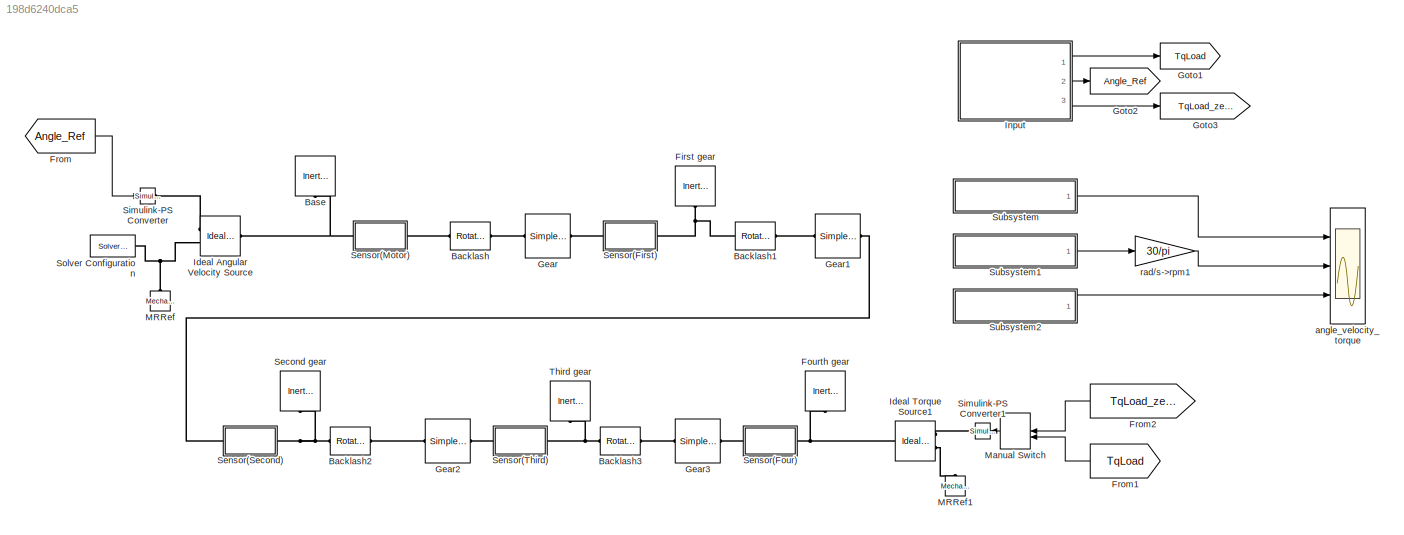
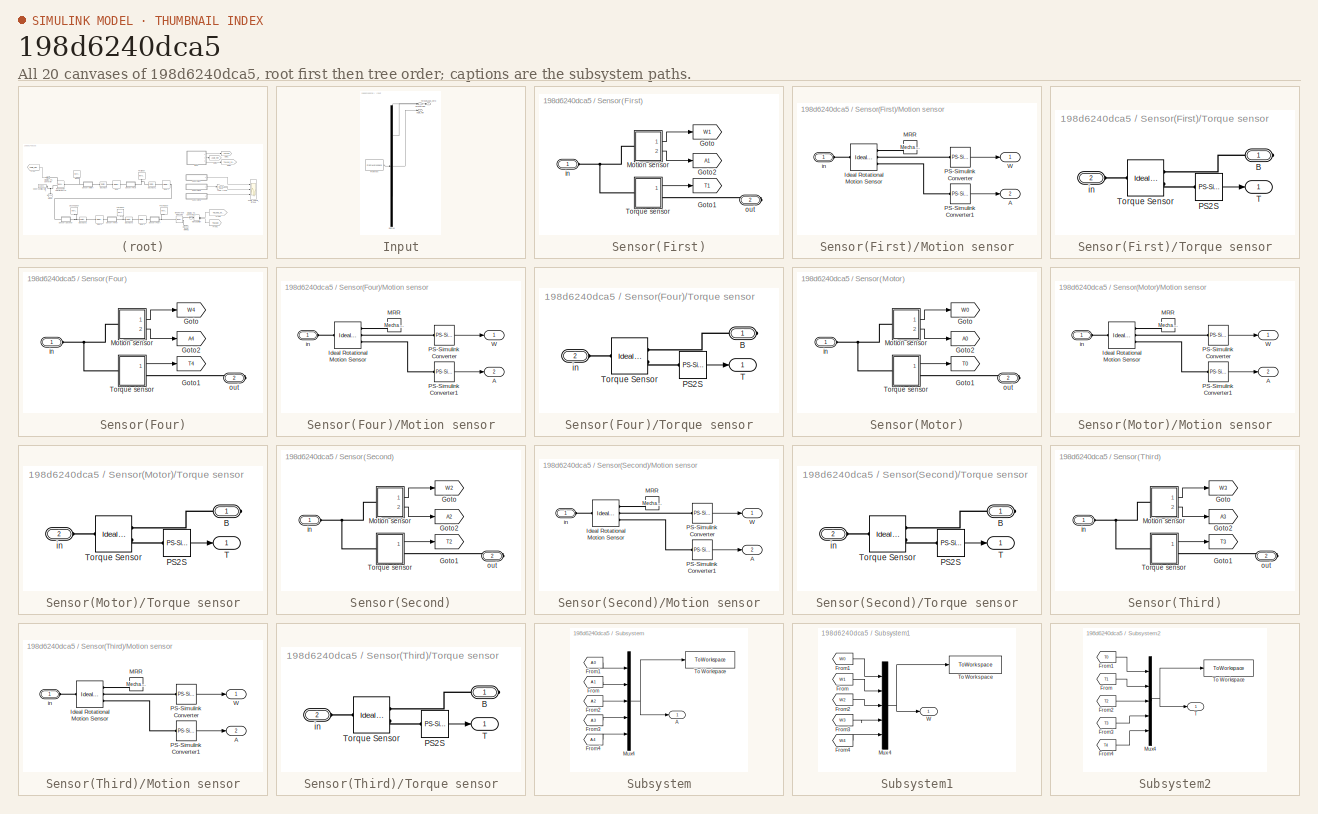
[diagram: thumbnail index - all 20 canvases of the model, root first then tree order]
MODEL slx_198d6240dca5
KIND model
CONFIG AbsTol = auto
CONFIG EnableMultiTasking = on
CONFIG FixedStep = auto
CONFIG InitFcn = Gear_parameters\n
CONFIG MaxStep = 0.001
CONFIG MinStep = auto
CONFIG RelTol = 1e-3
CONFIG SampleTimeConstraint = Unconstrained
CONFIG Solver = ode15s
CONFIG SolverName = ode15s
CONFIG StartTime = 0.0
CONFIG StopFcn = Gear_plot
CONFIG StopTime = 1
BLOCK [Reference] Backlash  REF=fl_lib/Mechanical/Rotational Elements/Rotational Hard Stop
  Ports = [0, 0, 0, 0, 0, 1, 1]
  SourceBlock = fl_lib/Mechanical/Rotational Elements/Rotational Hard Stop
  SourceProductBaseCode = SS
  SourceType = Rotational Hard Stop
BLOCK [Reference] Backlash1  REF=fl_lib/Mechanical/Rotational Elements/Rotational Hard Stop
  Ports = [0, 0, 0, 0, 0, 1, 1]
  SourceBlock = fl_lib/Mechanical/Rotational Elements/Rotational Hard Stop
  SourceProductBaseCode = SS
  SourceType = Rotational Hard Stop
BLOCK [Reference] Backlash2  REF=fl_lib/Mechanical/Rotational Elements/Rotational Hard Stop
  Ports = [0, 0, 0, 0, 0, 1, 1]
  SourceBlock = fl_lib/Mechanical/Rotational Elements/Rotational Hard Stop
  SourceProductBaseCode = SS
  SourceType = Rotational Hard Stop
BLOCK [Reference] Backlash3  REF=fl_lib/Mechanical/Rotational Elements/Rotational Hard Stop
  Ports = [0, 0, 0, 0, 0, 1, 1]
  SourceBlock = fl_lib/Mechanical/Rotational Elements/Rotational Hard Stop
  SourceProductBaseCode = SS
  SourceType = Rotational Hard Stop
BLOCK [Reference] Base  REF=fl_lib/Mechanical/Rotational Elements/Inertia
  NameLocation = right
  Ports = [0, 0, 0, 0, 0, 1]
  SourceBlock = fl_lib/Mechanical/Rotational Elements/Inertia
  SourceProductBaseCode = SS
  SourceType = Inertia
BLOCK [Reference] First gear  REF=fl_lib/Mechanical/Rotational Elements/Inertia
  NameLocation = right
  Ports = [0, 0, 0, 0, 0, 1]
  SourceBlock = fl_lib/Mechanical/Rotational Elements/Inertia
  SourceProductBaseCode = SS
  SourceType = Inertia
BLOCK [Reference] Fourth gear  REF=fl_lib/Mechanical/Rotational Elements/Inertia
  NameLocation = right
  Ports = [0, 0, 0, 0, 0, 1]
  SourceBlock = fl_lib/Mechanical/Rotational Elements/Inertia
  SourceProductBaseCode = SS
  SourceType = Inertia
BLOCK [From] From
  GotoTag = Angle_Ref
BLOCK [From] From1
  GotoTag = TqLoad
  NameLocation = top
BLOCK [From] From2
  GotoTag = TqLoad_zero
  NameLocation = top
BLOCK [Reference] Gear  REF=sdl_lib/Gears/Simple Gear
  Ports = [0, 0, 0, 0, 0, 1, 1]
  SourceBlock = sdl_lib/Gears/Simple Gear
  SourceProductBaseCode = LD
  SourceType = Simple Gear
BLOCK [Reference] Gear1  REF=sdl_lib/Gears/Simple Gear
  Ports = [0, 0, 0, 0, 0, 1, 1]
  SourceBlock = sdl_lib/Gears/Simple Gear
  SourceProductBaseCode = LD
  SourceType = Simple Gear
BLOCK [Reference] Gear2  REF=sdl_lib/Gears/Simple Gear
  Ports = [0, 0, 0, 0, 0, 1, 1]
  SourceBlock = sdl_lib/Gears/Simple Gear
  SourceProductBaseCode = LD
  SourceType = Simple Gear
BLOCK [Reference] Gear3  REF=sdl_lib/Gears/Simple Gear
  Ports = [0, 0, 0, 0, 0, 1, 1]
  SourceBlock = sdl_lib/Gears/Simple Gear
  SourceProductBaseCode = LD
  SourceType = Simple Gear
BLOCK [Goto] Goto1
  GotoTag = TqLoad
BLOCK [Goto] Goto2
  GotoTag = Angle_Ref
BLOCK [Goto] Goto3
  GotoTag = TqLoad_zero
BLOCK [Reference] Ideal Angular Velocity Source  REF=fl_lib/Mechanical/Mechanical Sources/Ideal Angular
Velocity Source
  Ports = [0, 0, 0, 0, 0, 1, 2]
  SourceBlock = fl_lib/Mechanical/Mechanical Sources/Ideal Angular\nVelocity Source
  SourceProductBaseCode = SS
  SourceType = Ideal Angular\nVelocity Source
BLOCK [Reference] Ideal Torque Source1  REF=fl_lib/Mechanical/Mechanical Sources/Ideal Torque Source
  Ports = [0, 0, 0, 0, 0, 1, 2]
  SourceBlock = fl_lib/Mechanical/Mechanical Sources/Ideal Torque Source
  SourceProductBaseCode = SS
  SourceType = Ideal Torque Source
BLOCK [SubSystem] Input
  ClipboardFcn = sigbuilder_block('clipboard');
  CloseFcn = sigbuilder_block('close');
  ContinueFcn = sigbuilder_block('continue');
  CopyFcn = sigbuilder_block('copy');
  DeleteFcn = sigbuilder_block('delete');
  LoadFcn = sigbuilder_block('load');
  MaskHideContents = on
  ModelCloseFcn = sigbuilder_block('modelClose');
  NameChangeFcn = sigbuilder_block('namechange');
  OpenFcn = sigbuilder_block('open',[661.5 288 949.5 474.75 ]);
  PauseFcn = sigbuilder_block('pause');
  Ports = [0, 3]
  PreSaveFcn = sigbuilder_block('preSave');
  RequestExecContextInheritance = off
  StartFcn = sigbuilder_block('start');
  StopFcn = sigbuilder_block('stop');
  Tag = STV Subsys
BLOCK [Outport] Input/Angle_Ref
  Port = 2
  Tag = STV Outport
  VectorParamsAs1DForOutWhenUnconnected = off
BLOCK [Demux] Input/Demux
  DisplayOption = none
  Outputs = 3
  Ports = [1, 3]
  Tag = STV Demux
BLOCK [FromWorkspace] Input/FromWs
  Tag = STV FromWs
  VariableName = tuvar
BLOCK [Outport] Input/TorqueLoad
  Tag = STV Outport
  VectorParamsAs1DForOutWhenUnconnected = off
BLOCK [Outport] Input/TorqueLoad_zero
  Port = 3
  Tag = STV Outport
BLOCK [Reference] MRRef  REF=fl_lib/Mechanical/Rotational Elements/Mechanical
Rotational Reference
  NameLocation = right
  Ports = [0, 0, 0, 0, 0, 1]
  SourceBlock = fl_lib/Mechanical/Rotational Elements/Mechanical\nRotational Reference
  SourceProductBaseCode = SS
  SourceType = Mechanical\nRotational Reference
BLOCK [Reference] MRRef1  REF=fl_lib/Mechanical/Rotational Elements/Mechanical
Rotational Reference
  NameLocation = right
  Ports = [0, 0, 0, 0, 0, 1]
  SourceBlock = fl_lib/Mechanical/Rotational Elements/Mechanical\nRotational Reference
  SourceProductBaseCode = SS
  SourceType = Mechanical\nRotational Reference
BLOCK [ManualSwitch] Manual Switch
  NameLocation = top
BLOCK [Reference] Second gear  REF=fl_lib/Mechanical/Rotational Elements/Inertia
  NameLocation = right
  Ports = [0, 0, 0, 0, 0, 1]
  SourceBlock = fl_lib/Mechanical/Rotational Elements/Inertia
  SourceProductBaseCode = SS
  SourceType = Inertia
BLOCK [SubSystem] Sensor(First)
  Ports = [0, 0, 0, 0, 0, 1, 1]
  RequestExecContextInheritance = off
BLOCK [Goto] Sensor(First)/Goto
  GotoTag = W1
  TagVisibility = global
BLOCK [Goto] Sensor(First)/Goto1
  GotoTag = T1
  TagVisibility = global
BLOCK [Goto] Sensor(First)/Goto2
  GotoTag = A1
  TagVisibility = global
BLOCK [SubSystem] Sensor(First)/Motion sensor
  Ports = [0, 2, 0, 0, 0, 1]
  RequestExecContextInheritance = off
BLOCK [Outport] Sensor(First)/Motion sensor/A
  Port = 2
  VectorParamsAs1DForOutWhenUnconnected = off
BLOCK [Reference] Sensor(First)/Motion sensor/Ideal Rotational Motion Sensor  REF=fl_lib/Mechanical/Mechanical Sensors/Ideal Rotational
Motion Sensor
  Ports = [0, 0, 0, 0, 0, 1, 3]
  SourceBlock = fl_lib/Mechanical/Mechanical Sensors/Ideal Rotational\nMotion Sensor
  SourceProductBaseCode = SS
  SourceType = Ideal Rotational\nMotion Sensor
BLOCK [Reference] Sensor(First)/Motion sensor/MRR  REF=fl_lib/Mechanical/Rotational Elements/Mechanical
Rotational Reference
  NameLocation = top
  Ports = [0, 0, 0, 0, 0, 1]
  SourceBlock = fl_lib/Mechanical/Rotational Elements/Mechanical\nRotational Reference
  SourceProductBaseCode = SS
  SourceType = Mechanical\nRotational Reference
BLOCK [Reference] Sensor(First)/Motion sensor/PS-Simulink Converter  REF=nesl_utility/PS-Simulink
Converter
  Ports = [0, 1, 0, 0, 0, 1]
  SourceBlock = nesl_utility/PS-Simulink\nConverter
  SourceProductBaseCode = SS
  SourceType = PS-Simulink\nConverter
BLOCK [Reference] Sensor(First)/Motion sensor/PS-Simulink Converter1  REF=nesl_utility/PS-Simulink
Converter
  Ports = [0, 1, 0, 0, 0, 1]
  SourceBlock = nesl_utility/PS-Simulink\nConverter
  SourceProductBaseCode = SS
  SourceType = PS-Simulink\nConverter
BLOCK [Outport] Sensor(First)/Motion sensor/W
  VectorParamsAs1DForOutWhenUnconnected = off
BLOCK [PMIOPort] Sensor(First)/Motion sensor/in
  Side = Left
BLOCK [SubSystem] Sensor(First)/Torque sensor
  Ports = [0, 1, 0, 0, 0, 1, 1]
  RequestExecContextInheritance = off
BLOCK [PMIOPort] Sensor(First)/Torque sensor/B
  Side = Right
BLOCK [Reference] Sensor(First)/Torque sensor/PS2S  REF=nesl_utility/PS-Simulink
Converter
  Ports = [0, 1, 0, 0, 0, 1]
  SourceBlock = nesl_utility/PS-Simulink\nConverter
  SourceProductBaseCode = SS
  SourceType = PS-Simulink\nConverter
BLOCK [Outport] Sensor(First)/Torque sensor/T
  VectorParamsAs1DForOutWhenUnconnected = off
BLOCK [Reference] Sensor(First)/Torque sensor/Torque Sensor  REF=fl_lib/Mechanical/Mechanical Sensors/Ideal Torque Sensor
  Ports = [0, 0, 0, 0, 0, 1, 2]
  SourceBlock = fl_lib/Mechanical/Mechanical Sensors/Ideal Torque Sensor
  SourceProductBaseCode = SS
  SourceType = Ideal Torque Sensor
BLOCK [PMIOPort] Sensor(First)/Torque sensor/in
  Port = 2
  Side = Left
BLOCK [PMIOPort] Sensor(First)/in
  Side = Left
BLOCK [PMIOPort] Sensor(First)/out
  Port = 2
  Side = Right
BLOCK [SubSystem] Sensor(Four)
  Ports = [0, 0, 0, 0, 0, 1, 1]
  RequestExecContextInheritance = off
BLOCK [Goto] Sensor(Four)/Goto
  GotoTag = W4
  TagVisibility = global
BLOCK [Goto] Sensor(Four)/Goto1
  GotoTag = T4
  TagVisibility = global
BLOCK [Goto] Sensor(Four)/Goto2
  GotoTag = A4
  TagVisibility = global
BLOCK [SubSystem] Sensor(Four)/Motion sensor
  Ports = [0, 2, 0, 0, 0, 1]
  RequestExecContextInheritance = off
BLOCK [Outport] Sensor(Four)/Motion sensor/A
  Port = 2
  VectorParamsAs1DForOutWhenUnconnected = off
BLOCK [Reference] Sensor(Four)/Motion sensor/Ideal Rotational Motion Sensor  REF=fl_lib/Mechanical/Mechanical Sensors/Ideal Rotational
Motion Sensor
  Ports = [0, 0, 0, 0, 0, 1, 3]
  SourceBlock = fl_lib/Mechanical/Mechanical Sensors/Ideal Rotational\nMotion Sensor
  SourceProductBaseCode = SS
  SourceType = Ideal Rotational\nMotion Sensor
BLOCK [Reference] Sensor(Four)/Motion sensor/MRR  REF=fl_lib/Mechanical/Rotational Elements/Mechanical
Rotational Reference
  NameLocation = top
  Ports = [0, 0, 0, 0, 0, 1]
  SourceBlock = fl_lib/Mechanical/Rotational Elements/Mechanical\nRotational Reference
  SourceProductBaseCode = SS
  SourceType = Mechanical\nRotational Reference
BLOCK [Reference] Sensor(Four)/Motion sensor/PS-Simulink Converter  REF=nesl_utility/PS-Simulink
Converter
  Ports = [0, 1, 0, 0, 0, 1]
  SourceBlock = nesl_utility/PS-Simulink\nConverter
  SourceProductBaseCode = SS
  SourceType = PS-Simulink\nConverter
BLOCK [Reference] Sensor(Four)/Motion sensor/PS-Simulink Converter1  REF=nesl_utility/PS-Simulink
Converter
  Ports = [0, 1, 0, 0, 0, 1]
  SourceBlock = nesl_utility/PS-Simulink\nConverter
  SourceProductBaseCode = SS
  SourceType = PS-Simulink\nConverter
BLOCK [Outport] Sensor(Four)/Motion sensor/W
  VectorParamsAs1DForOutWhenUnconnected = off
BLOCK [PMIOPort] Sensor(Four)/Motion sensor/in
  Side = Left
BLOCK [SubSystem] Sensor(Four)/Torque sensor
  Ports = [0, 1, 0, 0, 0, 1, 1]
  RequestExecContextInheritance = off
BLOCK [PMIOPort] Sensor(Four)/Torque sensor/B
  Side = Right
BLOCK [Reference] Sensor(Four)/Torque sensor/PS2S  REF=nesl_utility/PS-Simulink
Converter
  Ports = [0, 1, 0, 0, 0, 1]
  SourceBlock = nesl_utility/PS-Simulink\nConverter
  SourceProductBaseCode = SS
  SourceType = PS-Simulink\nConverter
BLOCK [Outport] Sensor(Four)/Torque sensor/T
  VectorParamsAs1DForOutWhenUnconnected = off
BLOCK [Reference] Sensor(Four)/Torque sensor/Torque Sensor  REF=fl_lib/Mechanical/Mechanical Sensors/Ideal Torque Sensor
  Ports = [0, 0, 0, 0, 0, 1, 2]
  SourceBlock = fl_lib/Mechanical/Mechanical Sensors/Ideal Torque Sensor
  SourceProductBaseCode = SS
  SourceType = Ideal Torque Sensor
BLOCK [PMIOPort] Sensor(Four)/Torque sensor/in
  Port = 2
  Side = Left
BLOCK [PMIOPort] Sensor(Four)/in
  Side = Left
BLOCK [PMIOPort] Sensor(Four)/out
  Port = 2
  Side = Right
BLOCK [SubSystem] Sensor(Motor)
  Ports = [0, 0, 0, 0, 0, 1, 1]
  RequestExecContextInheritance = off
BLOCK [Goto] Sensor(Motor)/Goto
  GotoTag = W0
  TagVisibility = global
BLOCK [Goto] Sensor(Motor)/Goto1
  GotoTag = T0
  TagVisibility = global
BLOCK [Goto] Sensor(Motor)/Goto2
  GotoTag = A0
  TagVisibility = global
BLOCK [SubSystem] Sensor(Motor)/Motion sensor
  Ports = [0, 2, 0, 0, 0, 1]
  RequestExecContextInheritance = off
BLOCK [Outport] Sensor(Motor)/Motion sensor/A
  Port = 2
  VectorParamsAs1DForOutWhenUnconnected = off
BLOCK [Reference] Sensor(Motor)/Motion sensor/Ideal Rotational Motion Sensor  REF=fl_lib/Mechanical/Mechanical Sensors/Ideal Rotational
Motion Sensor
  Ports = [0, 0, 0, 0, 0, 1, 3]
  SourceBlock = fl_lib/Mechanical/Mechanical Sensors/Ideal Rotational\nMotion Sensor
  SourceProductBaseCode = SS
  SourceType = Ideal Rotational\nMotion Sensor
BLOCK [Reference] Sensor(Motor)/Motion sensor/MRR  REF=fl_lib/Mechanical/Rotational Elements/Mechanical
Rotational Reference
  NameLocation = top
  Ports = [0, 0, 0, 0, 0, 1]
  SourceBlock = fl_lib/Mechanical/Rotational Elements/Mechanical\nRotational Reference
  SourceProductBaseCode = SS
  SourceType = Mechanical\nRotational Reference
BLOCK [Reference] Sensor(Motor)/Motion sensor/PS-Simulink Converter  REF=nesl_utility/PS-Simulink
Converter
  Ports = [0, 1, 0, 0, 0, 1]
  SourceBlock = nesl_utility/PS-Simulink\nConverter
  SourceProductBaseCode = SS
  SourceType = PS-Simulink\nConverter
BLOCK [Reference] Sensor(Motor)/Motion sensor/PS-Simulink Converter1  REF=nesl_utility/PS-Simulink
Converter
  Ports = [0, 1, 0, 0, 0, 1]
  SourceBlock = nesl_utility/PS-Simulink\nConverter
  SourceProductBaseCode = SS
  SourceType = PS-Simulink\nConverter
BLOCK [Outport] Sensor(Motor)/Motion sensor/W
  VectorParamsAs1DForOutWhenUnconnected = off
BLOCK [PMIOPort] Sensor(Motor)/Motion sensor/in
  Side = Left
BLOCK [SubSystem] Sensor(Motor)/Torque sensor
  Ports = [0, 1, 0, 0, 0, 1, 1]
  RequestExecContextInheritance = off
BLOCK [PMIOPort] Sensor(Motor)/Torque sensor/B
  Side = Right
BLOCK [Reference] Sensor(Motor)/Torque sensor/PS2S  REF=nesl_utility/PS-Simulink
Converter
  Ports = [0, 1, 0, 0, 0, 1]
  SourceBlock = nesl_utility/PS-Simulink\nConverter
  SourceProductBaseCode = SS
  SourceType = PS-Simulink\nConverter
BLOCK [Outport] Sensor(Motor)/Torque sensor/T
  VectorParamsAs1DForOutWhenUnconnected = off
BLOCK [Reference] Sensor(Motor)/Torque sensor/Torque Sensor  REF=fl_lib/Mechanical/Mechanical Sensors/Ideal Torque Sensor
  Ports = [0, 0, 0, 0, 0, 1, 2]
  SourceBlock = fl_lib/Mechanical/Mechanical Sensors/Ideal Torque Sensor
  SourceProductBaseCode = SS
  SourceType = Ideal Torque Sensor
BLOCK [PMIOPort] Sensor(Motor)/Torque sensor/in
  Port = 2
  Side = Left
BLOCK [PMIOPort] Sensor(Motor)/in
  Side = Left
BLOCK [PMIOPort] Sensor(Motor)/out
  Port = 2
  Side = Right
BLOCK [SubSystem] Sensor(Second)
  Ports = [0, 0, 0, 0, 0, 1, 1]
  RequestExecContextInheritance = off
BLOCK [Goto] Sensor(Second)/Goto
  GotoTag = W2
  TagVisibility = global
BLOCK [Goto] Sensor(Second)/Goto1
  GotoTag = T2
  TagVisibility = global
BLOCK [Goto] Sensor(Second)/Goto2
  GotoTag = A2
  TagVisibility = global
BLOCK [SubSystem] Sensor(Second)/Motion sensor
  Ports = [0, 2, 0, 0, 0, 1]
  RequestExecContextInheritance = off
BLOCK [Outport] Sensor(Second)/Motion sensor/A
  Port = 2
  VectorParamsAs1DForOutWhenUnconnected = off
BLOCK [Reference] Sensor(Second)/Motion sensor/Ideal Rotational Motion Sensor  REF=fl_lib/Mechanical/Mechanical Sensors/Ideal Rotational
Motion Sensor
  Ports = [0, 0, 0, 0, 0, 1, 3]
  SourceBlock = fl_lib/Mechanical/Mechanical Sensors/Ideal Rotational\nMotion Sensor
  SourceProductBaseCode = SS
  SourceType = Ideal Rotational\nMotion Sensor
BLOCK [Reference] Sensor(Second)/Motion sensor/MRR  REF=fl_lib/Mechanical/Rotational Elements/Mechanical
Rotational Reference
  NameLocation = top
  Ports = [0, 0, 0, 0, 0, 1]
  SourceBlock = fl_lib/Mechanical/Rotational Elements/Mechanical\nRotational Reference
  SourceProductBaseCode = SS
  SourceType = Mechanical\nRotational Reference
BLOCK [Reference] Sensor(Second)/Motion sensor/PS-Simulink Converter  REF=nesl_utility/PS-Simulink
Converter
  Ports = [0, 1, 0, 0, 0, 1]
  SourceBlock = nesl_utility/PS-Simulink\nConverter
  SourceProductBaseCode = SS
  SourceType = PS-Simulink\nConverter
BLOCK [Reference] Sensor(Second)/Motion sensor/PS-Simulink Converter1  REF=nesl_utility/PS-Simulink
Converter
  Ports = [0, 1, 0, 0, 0, 1]
  SourceBlock = nesl_utility/PS-Simulink\nConverter
  SourceProductBaseCode = SS
  SourceType = PS-Simulink\nConverter
BLOCK [Outport] Sensor(Second)/Motion sensor/W
  VectorParamsAs1DForOutWhenUnconnected = off
BLOCK [PMIOPort] Sensor(Second)/Motion sensor/in
  Side = Left
BLOCK [SubSystem] Sensor(Second)/Torque sensor
  Ports = [0, 1, 0, 0, 0, 1, 1]
  RequestExecContextInheritance = off
BLOCK [PMIOPort] Sensor(Second)/Torque sensor/B
  Side = Right
BLOCK [Reference] Sensor(Second)/Torque sensor/PS2S  REF=nesl_utility/PS-Simulink
Converter
  Ports = [0, 1, 0, 0, 0, 1]
  SourceBlock = nesl_utility/PS-Simulink\nConverter
  SourceProductBaseCode = SS
  SourceType = PS-Simulink\nConverter
BLOCK [Outport] Sensor(Second)/Torque sensor/T
  VectorParamsAs1DForOutWhenUnconnected = off
BLOCK [Reference] Sensor(Second)/Torque sensor/Torque Sensor  REF=fl_lib/Mechanical/Mechanical Sensors/Ideal Torque Sensor
  Ports = [0, 0, 0, 0, 0, 1, 2]
  SourceBlock = fl_lib/Mechanical/Mechanical Sensors/Ideal Torque Sensor
  SourceProductBaseCode = SS
  SourceType = Ideal Torque Sensor
BLOCK [PMIOPort] Sensor(Second)/Torque sensor/in
  Port = 2
  Side = Left
BLOCK [PMIOPort] Sensor(Second)/in
  Side = Left
BLOCK [PMIOPort] Sensor(Second)/out
  Port = 2
  Side = Right
BLOCK [SubSystem] Sensor(Third)
  Ports = [0, 0, 0, 0, 0, 1, 1]
  RequestExecContextInheritance = off
BLOCK [Goto] Sensor(Third)/Goto
  GotoTag = W3
  TagVisibility = global
BLOCK [Goto] Sensor(Third)/Goto1
  GotoTag = T3
  TagVisibility = global
BLOCK [Goto] Sensor(Third)/Goto2
  GotoTag = A3
  TagVisibility = global
BLOCK [SubSystem] Sensor(Third)/Motion sensor
  Ports = [0, 2, 0, 0, 0, 1]
  RequestExecContextInheritance = off
BLOCK [Outport] Sensor(Third)/Motion sensor/A
  Port = 2
  VectorParamsAs1DForOutWhenUnconnected = off
BLOCK [Reference] Sensor(Third)/Motion sensor/Ideal Rotational Motion Sensor  REF=fl_lib/Mechanical/Mechanical Sensors/Ideal Rotational
Motion Sensor
  Ports = [0, 0, 0, 0, 0, 1, 3]
  SourceBlock = fl_lib/Mechanical/Mechanical Sensors/Ideal Rotational\nMotion Sensor
  SourceProductBaseCode = SS
  SourceType = Ideal Rotational\nMotion Sensor
BLOCK [Reference] Sensor(Third)/Motion sensor/MRR  REF=fl_lib/Mechanical/Rotational Elements/Mechanical
Rotational Reference
  NameLocation = top
  Ports = [0, 0, 0, 0, 0, 1]
  SourceBlock = fl_lib/Mechanical/Rotational Elements/Mechanical\nRotational Reference
  SourceProductBaseCode = SS
  SourceType = Mechanical\nRotational Reference
BLOCK [Reference] Sensor(Third)/Motion sensor/PS-Simulink Converter  REF=nesl_utility/PS-Simulink
Converter
  Ports = [0, 1, 0, 0, 0, 1]
  SourceBlock = nesl_utility/PS-Simulink\nConverter
  SourceProductBaseCode = SS
  SourceType = PS-Simulink\nConverter
BLOCK [Reference] Sensor(Third)/Motion sensor/PS-Simulink Converter1  REF=nesl_utility/PS-Simulink
Converter
  Ports = [0, 1, 0, 0, 0, 1]
  SourceBlock = nesl_utility/PS-Simulink\nConverter
  SourceProductBaseCode = SS
  SourceType = PS-Simulink\nConverter
BLOCK [Outport] Sensor(Third)/Motion sensor/W
  VectorParamsAs1DForOutWhenUnconnected = off
BLOCK [PMIOPort] Sensor(Third)/Motion sensor/in
  Side = Left
BLOCK [SubSystem] Sensor(Third)/Torque sensor
  Ports = [0, 1, 0, 0, 0, 1, 1]
  RequestExecContextInheritance = off
BLOCK [PMIOPort] Sensor(Third)/Torque sensor/B
  Side = Right
BLOCK [Reference] Sensor(Third)/Torque sensor/PS2S  REF=nesl_utility/PS-Simulink
Converter
  Ports = [0, 1, 0, 0, 0, 1]
  SourceBlock = nesl_utility/PS-Simulink\nConverter
  SourceProductBaseCode = SS
  SourceType = PS-Simulink\nConverter
BLOCK [Outport] Sensor(Third)/Torque sensor/T
  VectorParamsAs1DForOutWhenUnconnected = off
BLOCK [Reference] Sensor(Third)/Torque sensor/Torque Sensor  REF=fl_lib/Mechanical/Mechanical Sensors/Ideal Torque Sensor
  Ports = [0, 0, 0, 0, 0, 1, 2]
  SourceBlock = fl_lib/Mechanical/Mechanical Sensors/Ideal Torque Sensor
  SourceProductBaseCode = SS
  SourceType = Ideal Torque Sensor
BLOCK [PMIOPort] Sensor(Third)/Torque sensor/in
  Port = 2
  Side = Left
BLOCK [PMIOPort] Sensor(Third)/in
  Side = Left
BLOCK [PMIOPort] Sensor(Third)/out
  Port = 2
  Side = Right
BLOCK [Reference] Simulink-PS Converter  REF=nesl_utility/Simulink-PS
Converter
  Ports = [1, 0, 0, 0, 0, 0, 1]
  SourceBlock = nesl_utility/Simulink-PS\nConverter
  SourceProductBaseCode = SS
  SourceType = Simulink-PS\nConverter
BLOCK [Reference] Simulink-PS Converter1  REF=nesl_utility/Simulink-PS
Converter
  Ports = [1, 0, 0, 0, 0, 0, 1]
  SourceBlock = nesl_utility/Simulink-PS\nConverter
  SourceProductBaseCode = SS
  SourceType = Simulink-PS\nConverter
BLOCK [Reference] Solver Configuration  REF=nesl_utility/Solver
Configuration
  Ports = [0, 0, 0, 0, 0, 0, 1]
  SourceBlock = nesl_utility/Solver\nConfiguration
  SourceProductBaseCode = SS
  SourceType = Solver\nConfiguration
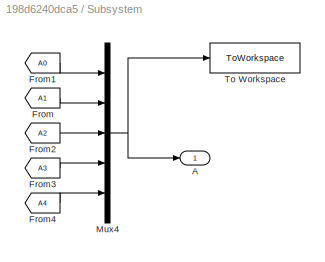
BLOCK [SubSystem] Subsystem
  Ports = [0, 1]
  RequestExecContextInheritance = off
BLOCK [Outport] Subsystem/A
BLOCK [From] Subsystem/From
  GotoTag = A1
  TagVisibility = global
BLOCK [From] Subsystem/From1
  GotoTag = A0
  TagVisibility = global
BLOCK [From] Subsystem/From2
  GotoTag = A2
  TagVisibility = global
BLOCK [From] Subsystem/From3
  GotoTag = A3
  TagVisibility = global
BLOCK [From] Subsystem/From4
  GotoTag = A4
  TagVisibility = global
BLOCK [Mux] Subsystem/Mux4
  DisplayOption = bar
  Inputs = 5
  Ports = [5, 1]
BLOCK [ToWorkspace] Subsystem/To Workspace
  FixptAsFi = on
  MaxDataPoints = inf
  Ports = [1]
  SampleTime = -1
  SaveFormat = Timeseries
  VariableName = A
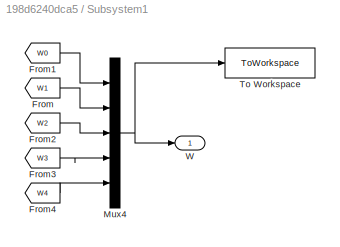
BLOCK [SubSystem] Subsystem1
  Ports = [0, 1]
  RequestExecContextInheritance = off
BLOCK [From] Subsystem1/From
  GotoTag = W1
  TagVisibility = global
BLOCK [From] Subsystem1/From1
  GotoTag = W0
  TagVisibility = global
BLOCK [From] Subsystem1/From2
  GotoTag = W2
  TagVisibility = global
BLOCK [From] Subsystem1/From3
  GotoTag = W3
  TagVisibility = global
BLOCK [From] Subsystem1/From4
  GotoTag = W4
  TagVisibility = global
BLOCK [Mux] Subsystem1/Mux4
  DisplayOption = bar
  Inputs = 5
  Ports = [5, 1]
BLOCK [ToWorkspace] Subsystem1/To Workspace
  FixptAsFi = on
  MaxDataPoints = inf
  Ports = [1]
  SampleTime = -1
  SaveFormat = Timeseries
  VariableName = W
BLOCK [Outport] Subsystem1/W
BLOCK [SubSystem] Subsystem2
  Ports = [0, 1]
  RequestExecContextInheritance = off
BLOCK [From] Subsystem2/From
  GotoTag = T1
  TagVisibility = global
BLOCK [From] Subsystem2/From1
  GotoTag = T0
  TagVisibility = global
BLOCK [From] Subsystem2/From2
  GotoTag = T2
  TagVisibility = global
BLOCK [From] Subsystem2/From3
  GotoTag = T3
  TagVisibility = global
BLOCK [From] Subsystem2/From4
  GotoTag = T4
  TagVisibility = global
BLOCK [Mux] Subsystem2/Mux4
  DisplayOption = bar
  Inputs = 5
  Ports = [5, 1]
BLOCK [Outport] Subsystem2/T
BLOCK [ToWorkspace] Subsystem2/To Workspace
  FixptAsFi = on
  MaxDataPoints = inf
  Ports = [1]
  SampleTime = -1
  SaveFormat = Timeseries
  VariableName = T
BLOCK [Reference] Third gear  REF=fl_lib/Mechanical/Rotational Elements/Inertia
  NameLocation = right
  Ports = [0, 0, 0, 0, 0, 1]
  SourceBlock = fl_lib/Mechanical/Rotational Elements/Inertia
  SourceProductBaseCode = SS
  SourceType = Inertia
BLOCK [Scope] angle_velocity_torque
  Description = angle,velocity,torque
  Floating = off
  NumInputPorts = 3
  Ports = [3]
  ScopeSpecificationString = Simulink.scopes.TimeScopeBlockCfg('CurrentConfiguration', extmgr.ConfigurationSet(extmgr.Configuration('Core','General UI',true),extmgr.Configuration('Core','Source UI',true),extmgr.Configuration('Sources','WiredSimulink',true,'DataLoggingSaveFormat','StructureWithTime','DataLoggingMaxPoints','15000','DataLoggingDecimation','1','DataLoggingDecimateData',true),extmgr.Configuration('Visuals','Time D...<+4073ch>
  Tag = angle,velocity,torque
BLOCK [Gain] rad//s->rpm1
  Gain = 30/pi
LINE From1:1 -> Manual Switch:2
LINE From2:1 -> Manual Switch:1
LINE From:1 -> Simulink-PS Converter:1
LINE Input:1 -> Goto1:1
LINE Input:2 -> Goto2:1
LINE Input:3 -> Goto3:1
LINE Manual Switch:1 -> Simulink-PS Converter1:1
LINE Sensor(First)/Motion sensor/PS-Simulink Converter1:1 -> Sensor(First)/Motion sensor/A:1
LINE Sensor(First)/Motion sensor/PS-Simulink Converter:1 -> Sensor(First)/Motion sensor/W:1
LINE Sensor(First)/Motion sensor:1 -> Sensor(First)/Goto:1
LINE Sensor(First)/Motion sensor:2 -> Sensor(First)/Goto2:1
LINE Sensor(First)/Torque sensor/PS2S:1 -> Sensor(First)/Torque sensor/T:1
LINE Sensor(First)/Torque sensor:1 -> Sensor(First)/Goto1:1
LINE Sensor(Four)/Motion sensor/PS-Simulink Converter1:1 -> Sensor(Four)/Motion sensor/A:1
LINE Sensor(Four)/Motion sensor/PS-Simulink Converter:1 -> Sensor(Four)/Motion sensor/W:1
LINE Sensor(Four)/Motion sensor:1 -> Sensor(Four)/Goto:1
LINE Sensor(Four)/Motion sensor:2 -> Sensor(Four)/Goto2:1
LINE Sensor(Four)/Torque sensor/PS2S:1 -> Sensor(Four)/Torque sensor/T:1
LINE Sensor(Four)/Torque sensor:1 -> Sensor(Four)/Goto1:1
LINE Sensor(Motor)/Motion sensor/PS-Simulink Converter1:1 -> Sensor(Motor)/Motion sensor/A:1
LINE Sensor(Motor)/Motion sensor/PS-Simulink Converter:1 -> Sensor(Motor)/Motion sensor/W:1
LINE Sensor(Motor)/Motion sensor:1 -> Sensor(Motor)/Goto:1
LINE Sensor(Motor)/Motion sensor:2 -> Sensor(Motor)/Goto2:1
LINE Sensor(Motor)/Torque sensor/PS2S:1 -> Sensor(Motor)/Torque sensor/T:1
LINE Sensor(Motor)/Torque sensor:1 -> Sensor(Motor)/Goto1:1
LINE Sensor(Second)/Motion sensor/PS-Simulink Converter1:1 -> Sensor(Second)/Motion sensor/A:1
LINE Sensor(Second)/Motion sensor/PS-Simulink Converter:1 -> Sensor(Second)/Motion sensor/W:1
LINE Sensor(Second)/Motion sensor:1 -> Sensor(Second)/Goto:1
LINE Sensor(Second)/Motion sensor:2 -> Sensor(Second)/Goto2:1
LINE Sensor(Second)/Torque sensor/PS2S:1 -> Sensor(Second)/Torque sensor/T:1
LINE Sensor(Second)/Torque sensor:1 -> Sensor(Second)/Goto1:1
LINE Sensor(Third)/Motion sensor/PS-Simulink Converter1:1 -> Sensor(Third)/Motion sensor/A:1
LINE Sensor(Third)/Motion sensor/PS-Simulink Converter:1 -> Sensor(Third)/Motion sensor/W:1
LINE Sensor(Third)/Motion sensor:1 -> Sensor(Third)/Goto:1
LINE Sensor(Third)/Motion sensor:2 -> Sensor(Third)/Goto2:1
LINE Sensor(Third)/Torque sensor/PS2S:1 -> Sensor(Third)/Torque sensor/T:1
LINE Sensor(Third)/Torque sensor:1 -> Sensor(Third)/Goto1:1
LINE Subsystem/From1:1 -> Subsystem/Mux4:1
LINE Subsystem/From2:1 -> Subsystem/Mux4:3
LINE Subsystem/From3:1 -> Subsystem/Mux4:4
LINE Subsystem/From4:1 -> Subsystem/Mux4:5
LINE Subsystem/From:1 -> Subsystem/Mux4:2
NET Subsystem/Mux4:1 -> Subsystem/A:1, Subsystem/To Workspace:1
LINE Subsystem1/From1:1 -> Subsystem1/Mux4:1
LINE Subsystem1/From2:1 -> Subsystem1/Mux4:3
LINE Subsystem1/From3:1 -> Subsystem1/Mux4:4
LINE Subsystem1/From4:1 -> Subsystem1/Mux4:5
LINE Subsystem1/From:1 -> Subsystem1/Mux4:2
NET Subsystem1/Mux4:1 -> Subsystem1/To Workspace:1, Subsystem1/W:1
LINE Subsystem1:1 -> rad//s->rpm1:1
LINE Subsystem2/From1:1 -> Subsystem2/Mux4:1
LINE Subsystem2/From2:1 -> Subsystem2/Mux4:3
LINE Subsystem2/From3:1 -> Subsystem2/Mux4:4
LINE Subsystem2/From4:1 -> Subsystem2/Mux4:5
LINE Subsystem2/From:1 -> Subsystem2/Mux4:2
NET Subsystem2/Mux4:1 -> Subsystem2/T:1, Subsystem2/To Workspace:1
LINE Subsystem2:1 -> angle_velocity_torque:3
LINE Subsystem:1 -> angle_velocity_torque:1
LINE rad//s->rpm1:1 -> angle_velocity_torque:2
PNET net1: Backlash1:LConn1 -- First gear:LConn1 -- Sensor(First):RConn1
PLINE Backlash1:RConn1 -- Gear1:LConn1
PNET net2: Backlash2:LConn1 -- Second gear:LConn1 -- Sensor(Second):RConn1
PLINE Backlash2:RConn1 -- Gear2:LConn1
PNET net3: Backlash3:LConn1 -- Sensor(Third):RConn1 -- Third gear:LConn1
PLINE Backlash3:RConn1 -- Gear3:LConn1
PLINE Backlash:LConn1 -- Sensor(Motor):RConn1
PLINE Backlash:RConn1 -- Gear:LConn1
PNET net4: Base:LConn1 -- Ideal Angular Velocity Source:LConn1 -- Sensor(Motor):LConn1
PNET net5: Fourth gear:LConn1 -- Ideal Torque Source1:LConn1 -- Sensor(Four):RConn1
PLINE Gear1:RConn1 -- Sensor(Second):LConn1
PLINE Gear2:RConn1 -- Sensor(Third):LConn1
PLINE Gear3:RConn1 -- Sensor(Four):LConn1
PLINE Gear:RConn1 -- Sensor(First):LConn1
PLINE Ideal Angular Velocity Source:RConn1 -- Simulink-PS Converter:RConn1
PNET net6: Ideal Angular Velocity Source:RConn2 -- MRRef:LConn1 -- Solver Configuration:RConn1
PLINE Ideal Torque Source1:RConn1 -- Simulink-PS Converter1:RConn1
PLINE Ideal Torque Source1:RConn2 -- MRRef1:LConn1
PLINE Sensor(First)/Motion sensor/Ideal Rotational Motion Sensor:LConn1 -- Sensor(First)/Motion sensor/in:RConn1
PLINE Sensor(First)/Motion sensor/Ideal Rotational Motion Sensor:RConn1 -- Sensor(First)/Motion sensor/MRR:LConn1
PLINE Sensor(First)/Motion sensor/Ideal Rotational Motion Sensor:RConn2 -- Sensor(First)/Motion sensor/PS-Simulink Converter:LConn1
PLINE Sensor(First)/Motion sensor/Ideal Rotational Motion Sensor:RConn3 -- Sensor(First)/Motion sensor/PS-Simulink Converter1:LConn1
PNET net7: Sensor(First)/Motion sensor:LConn1 -- Sensor(First)/Torque sensor:LConn1 -- Sensor(First)/in:RConn1
PLINE Sensor(First)/Torque sensor/B:RConn1 -- Sensor(First)/Torque sensor/Torque Sensor:RConn1
PLINE Sensor(First)/Torque sensor/PS2S:LConn1 -- Sensor(First)/Torque sensor/Torque Sensor:RConn2
PLINE Sensor(First)/Torque sensor/Torque Sensor:LConn1 -- Sensor(First)/Torque sensor/in:RConn1
PLINE Sensor(First)/Torque sensor:RConn1 -- Sensor(First)/out:RConn1
PLINE Sensor(Four)/Motion sensor/Ideal Rotational Motion Sensor:LConn1 -- Sensor(Four)/Motion sensor/in:RConn1
PLINE Sensor(Four)/Motion sensor/Ideal Rotational Motion Sensor:RConn1 -- Sensor(Four)/Motion sensor/MRR:LConn1
PLINE Sensor(Four)/Motion sensor/Ideal Rotational Motion Sensor:RConn2 -- Sensor(Four)/Motion sensor/PS-Simulink Converter:LConn1
PLINE Sensor(Four)/Motion sensor/Ideal Rotational Motion Sensor:RConn3 -- Sensor(Four)/Motion sensor/PS-Simulink Converter1:LConn1
PNET net8: Sensor(Four)/Motion sensor:LConn1 -- Sensor(Four)/Torque sensor:LConn1 -- Sensor(Four)/in:RConn1
PLINE Sensor(Four)/Torque sensor/B:RConn1 -- Sensor(Four)/Torque sensor/Torque Sensor:RConn1
PLINE Sensor(Four)/Torque sensor/PS2S:LConn1 -- Sensor(Four)/Torque sensor/Torque Sensor:RConn2
PLINE Sensor(Four)/Torque sensor/Torque Sensor:LConn1 -- Sensor(Four)/Torque sensor/in:RConn1
PLINE Sensor(Four)/Torque sensor:RConn1 -- Sensor(Four)/out:RConn1
PLINE Sensor(Motor)/Motion sensor/Ideal Rotational Motion Sensor:LConn1 -- Sensor(Motor)/Motion sensor/in:RConn1
PLINE Sensor(Motor)/Motion sensor/Ideal Rotational Motion Sensor:RConn1 -- Sensor(Motor)/Motion sensor/MRR:LConn1
PLINE Sensor(Motor)/Motion sensor/Ideal Rotational Motion Sensor:RConn2 -- Sensor(Motor)/Motion sensor/PS-Simulink Converter:LConn1
PLINE Sensor(Motor)/Motion sensor/Ideal Rotational Motion Sensor:RConn3 -- Sensor(Motor)/Motion sensor/PS-Simulink Converter1:LConn1
PNET net9: Sensor(Motor)/Motion sensor:LConn1 -- Sensor(Motor)/Torque sensor:LConn1 -- Sensor(Motor)/in:RConn1
PLINE Sensor(Motor)/Torque sensor/B:RConn1 -- Sensor(Motor)/Torque sensor/Torque Sensor:RConn1
PLINE Sensor(Motor)/Torque sensor/PS2S:LConn1 -- Sensor(Motor)/Torque sensor/Torque Sensor:RConn2
PLINE Sensor(Motor)/Torque sensor/Torque Sensor:LConn1 -- Sensor(Motor)/Torque sensor/in:RConn1
PLINE Sensor(Motor)/Torque sensor:RConn1 -- Sensor(Motor)/out:RConn1
PLINE Sensor(Second)/Motion sensor/Ideal Rotational Motion Sensor:LConn1 -- Sensor(Second)/Motion sensor/in:RConn1
PLINE Sensor(Second)/Motion sensor/Ideal Rotational Motion Sensor:RConn1 -- Sensor(Second)/Motion sensor/MRR:LConn1
PLINE Sensor(Second)/Motion sensor/Ideal Rotational Motion Sensor:RConn2 -- Sensor(Second)/Motion sensor/PS-Simulink Converter:LConn1
PLINE Sensor(Second)/Motion sensor/Ideal Rotational Motion Sensor:RConn3 -- Sensor(Second)/Motion sensor/PS-Simulink Converter1:LConn1
PNET net10: Sensor(Second)/Motion sensor:LConn1 -- Sensor(Second)/Torque sensor:LConn1 -- Sensor(Second)/in:RConn1
PLINE Sensor(Second)/Torque sensor/B:RConn1 -- Sensor(Second)/Torque sensor/Torque Sensor:RConn1
PLINE Sensor(Second)/Torque sensor/PS2S:LConn1 -- Sensor(Second)/Torque sensor/Torque Sensor:RConn2
PLINE Sensor(Second)/Torque sensor/Torque Sensor:LConn1 -- Sensor(Second)/Torque sensor/in:RConn1
PLINE Sensor(Second)/Torque sensor:RConn1 -- Sensor(Second)/out:RConn1
PLINE Sensor(Third)/Motion sensor/Ideal Rotational Motion Sensor:LConn1 -- Sensor(Third)/Motion sensor/in:RConn1
PLINE Sensor(Third)/Motion sensor/Ideal Rotational Motion Sensor:RConn1 -- Sensor(Third)/Motion sensor/MRR:LConn1
PLINE Sensor(Third)/Motion sensor/Ideal Rotational Motion Sensor:RConn2 -- Sensor(Third)/Motion sensor/PS-Simulink Converter:LConn1
PLINE Sensor(Third)/Motion sensor/Ideal Rotational Motion Sensor:RConn3 -- Sensor(Third)/Motion sensor/PS-Simulink Converter1:LConn1
PNET net11: Sensor(Third)/Motion sensor:LConn1 -- Sensor(Third)/Torque sensor:LConn1 -- Sensor(Third)/in:RConn1
PLINE Sensor(Third)/Torque sensor/B:RConn1 -- Sensor(Third)/Torque sensor/Torque Sensor:RConn1
PLINE Sensor(Third)/Torque sensor/PS2S:LConn1 -- Sensor(Third)/Torque sensor/Torque Sensor:RConn2
PLINE Sensor(Third)/Torque sensor/Torque Sensor:LConn1 -- Sensor(Third)/Torque sensor/in:RConn1
PLINE Sensor(Third)/Torque sensor:RConn1 -- Sensor(Third)/out:RConn1
note: NET lines group one-source signal fan-out (src -> all destinations, sorted); 1:1 wires keep LINE; PNET lines group multi-terminal physical nets as a canonical sorted terminal list (undirected conserving connections); 2-terminal nets keep the pairwise PLINE form
